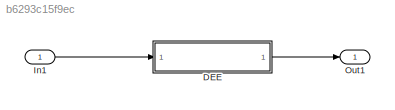
MODEL slx_b6293c15f9ec
KIND model
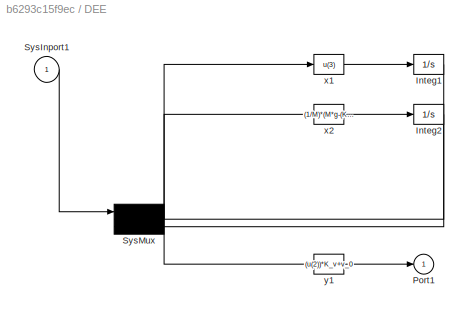
BLOCK [SubSystem] DEE
  FunctionWithSeparateData = off
  MaskHideContents = off
  MinAlgLoopOccurrences = off
  Opaque = off
  OpenFcn = diffeqed
  Ports = [1, 1]
  PropExecContextOutsideSubsystem = off
  RTWSystemCode = Auto
  RequestExecContextInheritance = off
BLOCK [Integrator] DEE/Integ1
  Ports = [1, 1]
BLOCK [Integrator] DEE/Integ2
  Ports = [1, 1]
BLOCK [Outport] DEE/Port1
  IconDisplay = Port number
BLOCK [Inport] DEE/SysInport1
  IconDisplay = Port number
BLOCK [Mux] DEE/SysMux
  Inputs = 3
  Ports = [3, 1]
BLOCK [Fcn] DEE/x1
  Expr = u(3)
BLOCK [Fcn] DEE/x2
  Expr = (1/M)*(M*g-(K_m*u^2+K_0)/(u(2)^2))
BLOCK [Fcn] DEE/y1
  Expr = (u(2))*K_v+v_0
BLOCK [Inport] In1
  IconDisplay = Port number
BLOCK [Outport] Out1
  IconDisplay = Port number
LINE DEE/Integ1:1 -> DEE/SysMux:2
LINE DEE/Integ2:1 -> DEE/SysMux:3
LINE DEE/SysInport1:1 -> DEE/SysMux:1
NET DEE/SysMux:1 -> DEE/x1:1, DEE/x2:1, DEE/y1:1
LINE DEE/x1:1 -> DEE/Integ1:1
LINE DEE/x2:1 -> DEE/Integ2:1
LINE DEE/y1:1 -> DEE/Port1:1
LINE DEE:1 -> Out1:1
LINE In1:1 -> DEE:1
note: NET lines group one-source signal fan-out (src -> all destinations, sorted); 1:1 wires keep LINE
